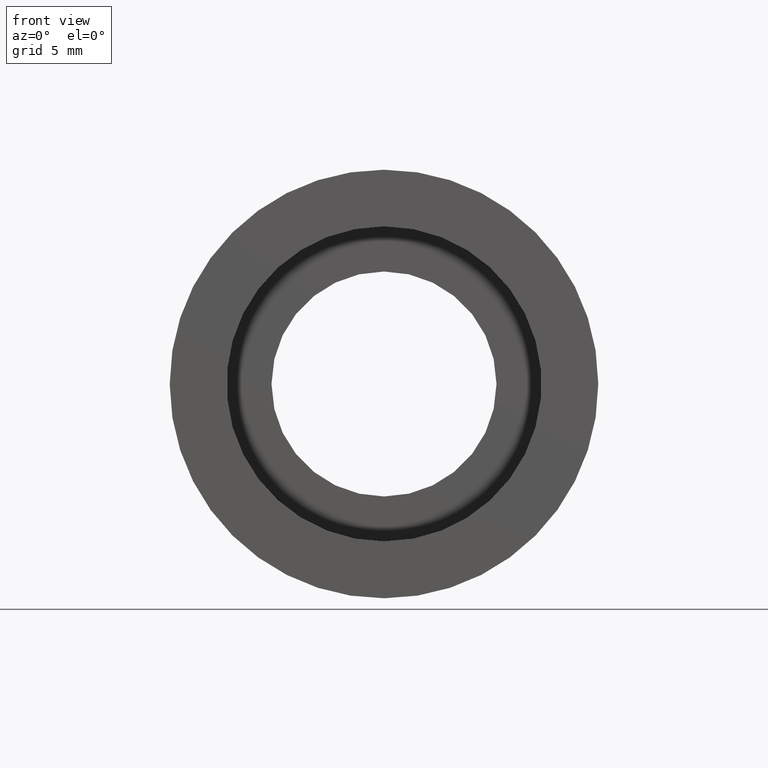
[diagram: clean part render]
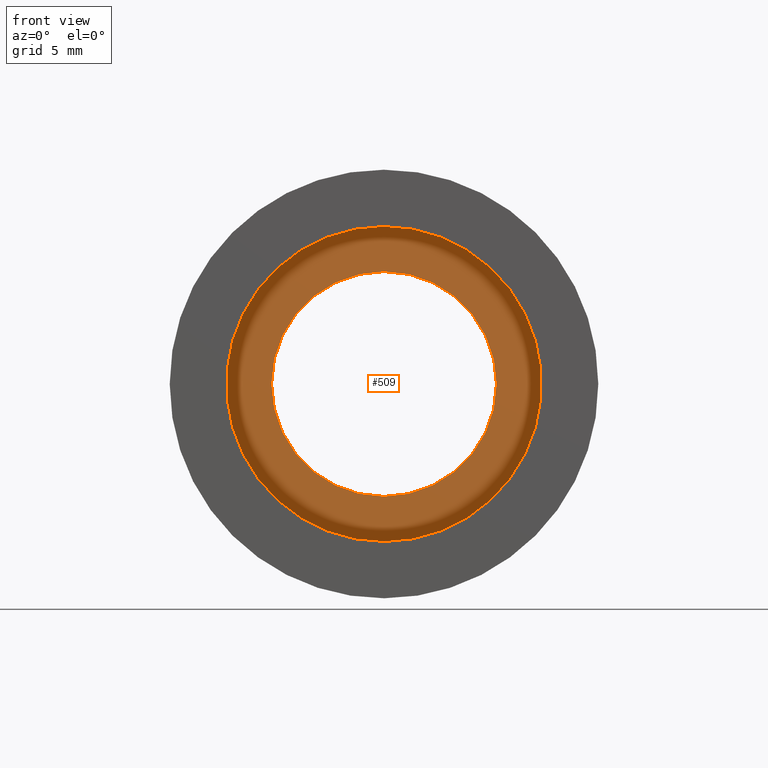
[diagram: same view with one face highlighted and labeled with its STEP entity id]
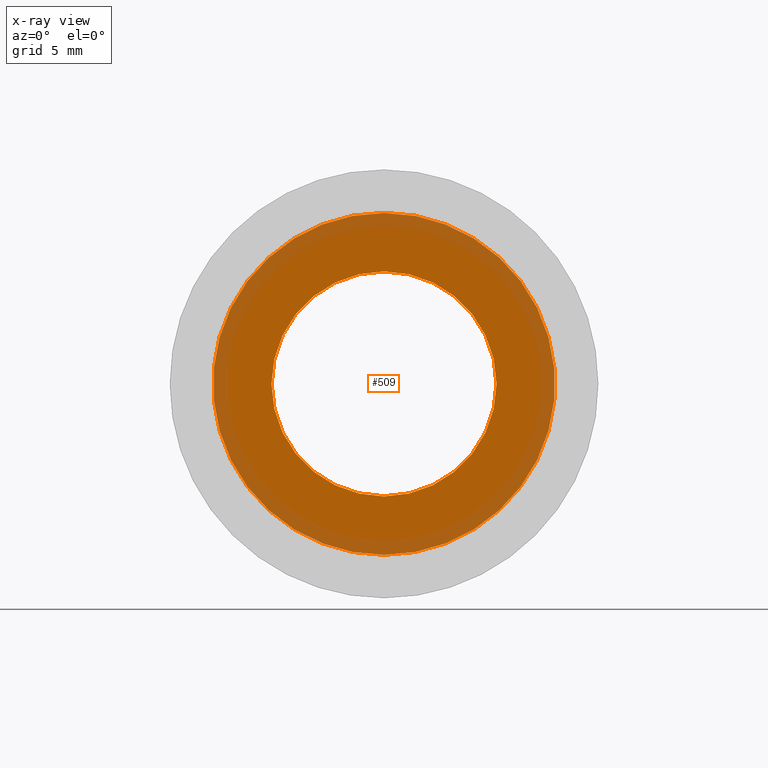
[diagram: x-ray of the same camera — body ghosted, the highlighted face saturated]
A machine part, front view. The second image highlights one B-rep face of the part: STEP entity #509.
The next image is the same camera in x-ray: the body ghosted, the highlighted face saturated — about 27% of this face is hidden behind the body in this view.
In plain terms, the highlighted planar face has unit normal (-0, 1, 0).
Its self-contained STEP definition (entity closure, byte-faithful):
#19 = EDGE_CURVE ( 'NONE', #63, #550, #117, .T. ) ;
#58 = FACE_BOUND ( 'NONE', #260, .T. ) ;
#63 = VERTEX_POINT ( 'NONE', #105 ) ;
#82 = CARTESIAN_POINT ( 'NONE',  ( 0.0000000000000000000, 5.499999999999976900, 0.0000000000000000000 ) ) ;
#90 = ORIENTED_EDGE ( 'NONE', *, *, #136, .T. ) ;
#95 = DIRECTION ( 'NONE',  ( 0.0000000000000000000, 0.0000000000000000000, 1.000000000000000000 ) ) ;
#105 = CARTESIAN_POINT ( 'NONE',  ( 6.123233995736789000E-016, 5.499999999999976900, -5.000000000000019500 ) ) ;
#112 = AXIS2_PLACEMENT_3D ( 'NONE', #432, #579, #294 ) ;
#117 = CIRCLE ( 'NONE', #624, 5.000000000000019500 ) ;
#130 = CARTESIAN_POINT ( 'NONE',  ( 0.0000000000000000000, 5.499999999999976900, 0.0000000000000000000 ) ) ;
#136 = EDGE_CURVE ( 'NONE', #550, #63, #352, .T. ) ;
#139 = DIRECTION ( 'NONE',  ( -0.0000000000000000000, 1.000000000000000000, -0.0000000000000000000 ) ) ;
#150 = CARTESIAN_POINT ( 'NONE',  ( 0.0000000000000000000, 5.499999999999976900, 5.000000000000019500 ) ) ;
#185 = DIRECTION ( 'NONE',  ( -0.0000000000000000000, 1.000000000000000000, -0.0000000000000000000 ) ) ;
#189 = ORIENTED_EDGE ( 'NONE', *, *, #202, .F. ) ;
#193 = CARTESIAN_POINT ( 'NONE',  ( 9.307315673519907200E-016, 5.499999999999976900, -7.600000000000019200 ) ) ;
#198 = CIRCLE ( 'NONE', #431, 7.600000000000019200 ) ;
#202 = EDGE_CURVE ( 'NONE', #623, #567, #259, .T. ) ;
#206 = EDGE_LOOP ( 'NONE', ( #189, #526 ) ) ;
#208 = CARTESIAN_POINT ( 'NONE',  ( 0.0000000000000000000, 5.499999999999976900, 7.600000000000019200 ) ) ;
#222 = DIRECTION ( 'NONE',  ( 0.0000000000000000000, 0.0000000000000000000, 1.000000000000000000 ) ) ;
#243 = PLANE ( 'NONE',  #112 ) ;
#259 = CIRCLE ( 'NONE', #310, 7.600000000000019200 ) ;
#260 = EDGE_LOOP ( 'NONE', ( #90, #368 ) ) ;
#273 = AXIS2_PLACEMENT_3D ( 'NONE', #418, #481, #572 ) ;
#285 = EDGE_CURVE ( 'NONE', #567, #623, #198, .T. ) ;
#293 = FACE_OUTER_BOUND ( 'NONE', #206, .T. ) ;
#294 = DIRECTION ( 'NONE',  ( 0.0000000000000000000, 0.0000000000000000000, 1.000000000000000000 ) ) ;
#310 = AXIS2_PLACEMENT_3D ( 'NONE', #82, #185, #569 ) ;
#352 = CIRCLE ( 'NONE', #273, 5.000000000000019500 ) ;
#368 = ORIENTED_EDGE ( 'NONE', *, *, #19, .T. ) ;
#418 = CARTESIAN_POINT ( 'NONE',  ( 0.0000000000000000000, 5.499999999999976900, 0.0000000000000000000 ) ) ;
#431 = AXIS2_PLACEMENT_3D ( 'NONE', #130, #563, #222 ) ;
#432 = CARTESIAN_POINT ( 'NONE',  ( 5.000000000000019500, 5.499999999999983100, 0.0000000000000000000 ) ) ;
#481 = DIRECTION ( 'NONE',  ( -0.0000000000000000000, 1.000000000000000000, -0.0000000000000000000 ) ) ;
#493 = CARTESIAN_POINT ( 'NONE',  ( 0.0000000000000000000, 5.499999999999976900, 0.0000000000000000000 ) ) ;
#509 = ADVANCED_FACE ( 'NONE', ( #293, #58 ), #243, .F. ) ;
#526 = ORIENTED_EDGE ( 'NONE', *, *, #285, .F. ) ;
#550 = VERTEX_POINT ( 'NONE', #150 ) ;
#563 = DIRECTION ( 'NONE',  ( -0.0000000000000000000, 1.000000000000000000, -0.0000000000000000000 ) ) ;
#567 = VERTEX_POINT ( 'NONE', #193 ) ;
#569 = DIRECTION ( 'NONE',  ( 0.0000000000000000000, 0.0000000000000000000, 1.000000000000000000 ) ) ;
#572 = DIRECTION ( 'NONE',  ( 0.0000000000000000000, 0.0000000000000000000, 1.000000000000000000 ) ) ;
#579 = DIRECTION ( 'NONE',  ( -0.0000000000000000000, 1.000000000000000000, 0.0000000000000000000 ) ) ;
#623 = VERTEX_POINT ( 'NONE', #208 ) ;
#624 = AXIS2_PLACEMENT_3D ( 'NONE', #493, #139, #95 ) ;